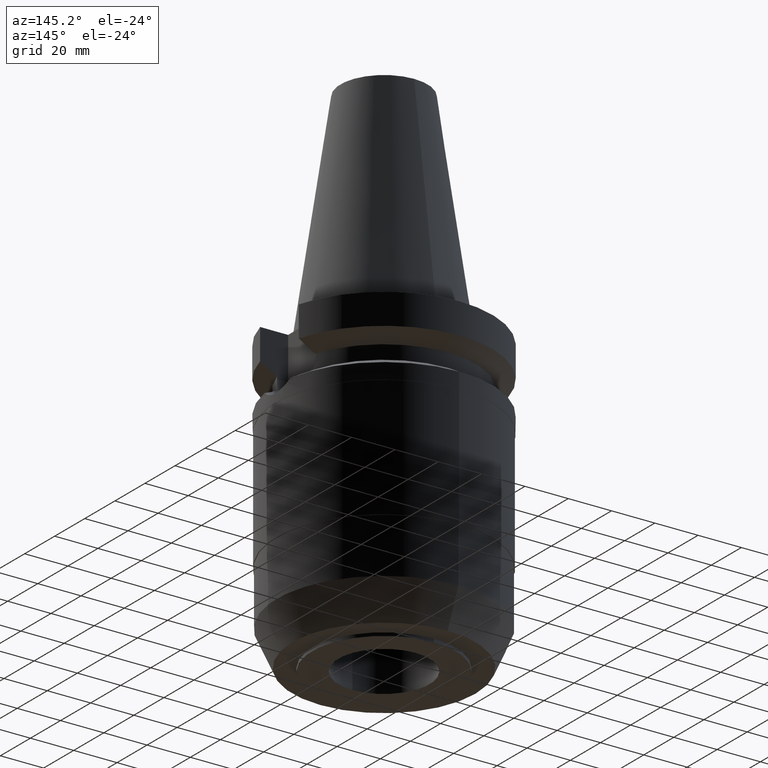
[diagram: clean part render]
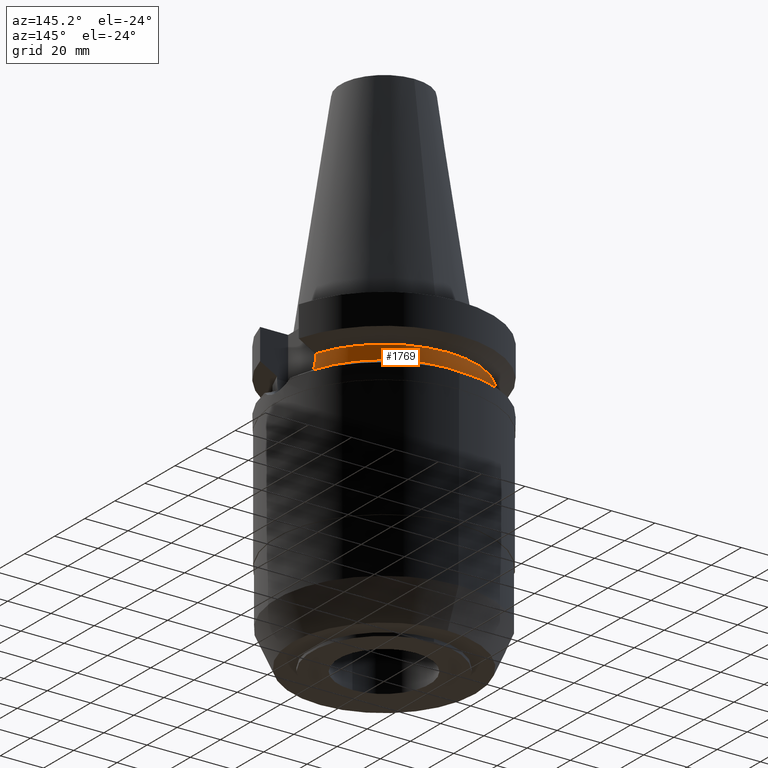
[diagram: same view with one face highlighted and labeled with its STEP entity id]
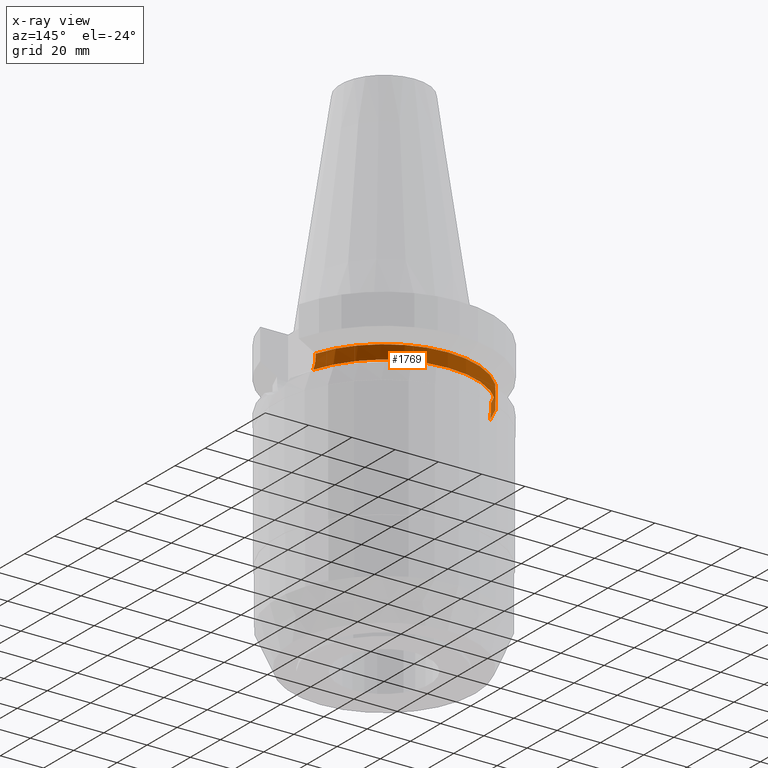
[diagram: x-ray of the same camera — body ghosted, the highlighted face saturated]
A machine part, auxiliary view. The second image highlights one B-rep face of the part: STEP entity #1769.
The next image is the same camera in x-ray: the body ghosted, the highlighted face saturated — about 2% of this face is hidden behind the body in this view.
In plain terms, the highlighted cylindrical surface (partial cylindrical patch) has radius 42.5 mm, axis along (0, 0, -1).
Its self-contained STEP definition (entity closure, byte-faithful):
#576=CARTESIAN_POINT('',(-4.085052569294E1,1.172538061688E1,-2.640718074535E1));
#612=CARTESIAN_POINT('',(0.E0,0.E0,-2.640718074535E1));
#613=DIRECTION('',(0.E0,0.E0,1.E0));
#614=DIRECTION('',(9.611888398338E-1,2.758913086325E-1,0.E0));
#615=AXIS2_PLACEMENT_3D('',#612,#613,#614);
#620=CARTESIAN_POINT('',(0.E0,0.E0,-2.640718074535E1));
#621=DIRECTION('',(0.E0,0.E0,1.E0));
#622=DIRECTION('',(0.E0,1.E0,0.E0));
#623=AXIS2_PLACEMENT_3D('',#620,#621,#622);
#628=CARTESIAN_POINT('',(-4.051083188482E1,1.285E1,-2.115E1));
#629=CARTESIAN_POINT('',(-4.051083188482E1,1.285E1,-2.175073247763E1));
#630=CARTESIAN_POINT('',(-4.053738276532E1,1.276675941257E1,-2.294139011626E1));
#631=CARTESIAN_POINT('',(-4.065473331505E1,1.239069690086E1,-2.471148607708E1));
#632=CARTESIAN_POINT('',(-4.077854934315E1,1.197614192029E1,-2.584789395860E1));
#633=CARTESIAN_POINT('',(-4.085052569294E1,1.172538061688E1,-2.640718074535E1));
#638=CARTESIAN_POINT('',(4.085052569294E1,1.172538061688E1,-2.640718074535E1));
#639=CARTESIAN_POINT('',(4.077854355979E1,1.197616206914E1,-2.584784901949E1));
#640=CARTESIAN_POINT('',(4.065472282753E1,1.239073116541E1,-2.471137551056E1));
#641=CARTESIAN_POINT('',(4.053737830953E1,1.276677337064E1,-2.294127393165E1));
#642=CARTESIAN_POINT('',(4.051083188482E1,1.285E1,-2.175068253365E1));
#643=CARTESIAN_POINT('',(4.051083188482E1,1.285E1,-2.115E1));
#648=DIRECTION('',(9.395523002367E-7,-2.962029390683E-6,9.999999999952E-1));
#649=VECTOR('',#648,1.157154441481E0);
#650=CARTESIAN_POINT('',(4.051083188482E1,1.285E1,-2.115E1));
#651=LINE('',#650,#649);
#655=DIRECTION('',(9.394379628069E-7,2.961668920751E-6,-9.999999999952E-1));
#656=VECTOR('',#655,1.157154444683E0);
#657=CARTESIAN_POINT('',(-4.051083297189E1,1.284999657289E1,-1.999284555532E1));
#658=LINE('',#657,#656);
#932=CARTESIAN_POINT('',(0.E0,1.006319759054E-14,-1.999281925465E1));
#933=DIRECTION('',(0.E0,0.E0,-1.E0));
#934=DIRECTION('',(-9.531960443487E-1,3.023529411765E-1,0.E0));
#935=AXIS2_PLACEMENT_3D('',#932,#933,#934);
#940=CARTESIAN_POINT('',(0.E0,1.006319759054E-14,-1.999281925465E1));
#941=DIRECTION('',(0.E0,0.E0,-1.E0));
#942=DIRECTION('',(0.E0,1.E0,0.E0));
#943=AXIS2_PLACEMENT_3D('',#940,#941,#942);
#1145=CARTESIAN_POINT('',(4.051083188482E1,1.285E1,-2.115E1));
#1146=VERTEX_POINT('',#1145);
#1147=VERTEX_POINT('',#638);
#1152=VERTEX_POINT('',#576);
#1154=CARTESIAN_POINT('',(0.E0,4.25E1,-2.640718074535E1));
#1155=VERTEX_POINT('',#1154);
#1156=VERTEX_POINT('',#628);
#1171=CARTESIAN_POINT('',(4.051083297203E1,1.284999657247E1,-1.999284555852E1));
#1172=VERTEX_POINT('',#1171);
#1173=CARTESIAN_POINT('',(-4.051083188482E1,1.285E1,-1.999281925465E1));
#1174=CARTESIAN_POINT('',(0.E0,4.25E1,-1.999281925465E1));
#1175=VERTEX_POINT('',#1173);
#1176=VERTEX_POINT('',#1174);
#1750=CARTESIAN_POINT('',(0.E0,2.617560068498E-14,1.1374E2));
#1751=DIRECTION('',(0.E0,0.E0,-1.E0));
#1752=DIRECTION('',(0.E0,-1.E0,0.E0));
#1753=AXIS2_PLACEMENT_3D('',#1750,#1751,#1752);
#1754=CYLINDRICAL_SURFACE('',#1753,4.25E1);
#1755=ORIENTED_EDGE('',*,*,#1704,.T.);
#1756=ORIENTED_EDGE('',*,*,#1745,.F.);
#1757=ORIENTED_EDGE('',*,*,#1743,.F.);
#1758=ORIENTED_EDGE('',*,*,#1669,.T.);
#1760=ORIENTED_EDGE('',*,*,#1759,.T.);
#1762=ORIENTED_EDGE('',*,*,#1761,.F.);
#1764=ORIENTED_EDGE('',*,*,#1763,.F.);
#1766=ORIENTED_EDGE('',*,*,#1765,.T.);
#1767=EDGE_LOOP('',(#1755,#1756,#1757,#1758,#1760,#1762,#1764,#1766));
#1768=FACE_OUTER_BOUND('',#1767,.F.);
#616=CIRCLE('',#615,4.25E1);
#624=CIRCLE('',#623,4.25E1);
#634=B_SPLINE_CURVE_WITH_KNOTS('',3,(#628,#629,#630,#631,#632,#633),
.UNSPECIFIED.,.F.,.F.,(4,1,1,4),(0.E0,3.333333333333E-1,6.666666666667E-1,1.E0),
.UNSPECIFIED.);
#644=B_SPLINE_CURVE_WITH_KNOTS('',3,(#638,#639,#640,#641,#642,#643),
.UNSPECIFIED.,.F.,.F.,(4,1,1,4),(0.E0,3.333333333333E-1,6.666666666667E-1,1.E0),
.UNSPECIFIED.);
#936=CIRCLE('',#935,4.25E1);
#944=CIRCLE('',#943,4.25E1);
#1669=EDGE_CURVE('',#1147,#1146,#644,.T.);
#1704=EDGE_CURVE('',#1156,#1152,#634,.T.);
#1743=EDGE_CURVE('',#1147,#1155,#616,.T.);
#1745=EDGE_CURVE('',#1155,#1152,#624,.T.);
#1759=EDGE_CURVE('',#1146,#1172,#651,.T.);
#1761=EDGE_CURVE('',#1176,#1172,#944,.T.);
#1763=EDGE_CURVE('',#1175,#1176,#936,.T.);
#1765=EDGE_CURVE('',#1175,#1156,#658,.T.);
#1769=ADVANCED_FACE('',(#1768),#1754,.T.);